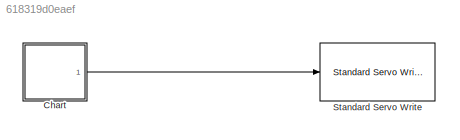
MODEL slx_618319d0eaef
KIND model
CONFIG AbsTol = auto
CONFIG EnableMultiTasking = on
CONFIG FixedStep = 0.1
CONFIG MaxStep = auto
CONFIG MinStep = auto
CONFIG RelTol = 1e-3
CONFIG SampleTimeConstraint = Unconstrained
CONFIG Solver = FixedStepAuto
CONFIG SolverName = FixedStepAuto
CONFIG StartTime = 0.0
CONFIG StopTime = inf
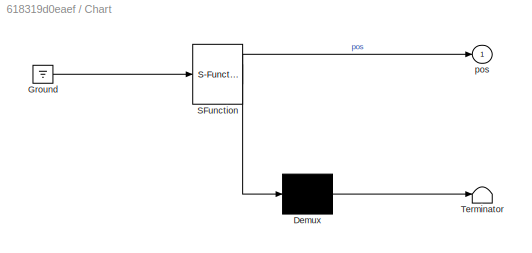
BLOCK [SubSystem] Chart
  BlockKeywords = __PRM__SERIALIZED__DATA__:Stateflow Chart,Stateflow Diagram
  ErrorFcn = Stateflow.Translate.translate
  PermitHierarchicalResolution = ExplicitOnly
  Ports = [0, 1]
  RequestExecContextInheritance = off
  SFBlockType = Chart
  TreatAsAtomicUnit = on
BLOCK [Demux] Chart/ Demux 
  Outputs = 1
  Ports = [1, 1]
BLOCK [Ground] Chart/ Ground 
BLOCK [S-Function] Chart/ SFunction 
  EnableBusSupport = on
  FunctionName = sf_sfun
  PortCounts = [1 2]
  Ports = [1, 2]
  SFcnIsStateOwnerBlock = off
  SFunctionDeploymentMode = off
  Tag = Stateflow S-Function servomotorFOLDING 3
BLOCK [Terminator] Chart/ Terminator 
BLOCK [Outport] Chart/pos
  IconDisplay = Port number
BLOCK [Reference] Standard Servo Write  REF=arduinolib/Standard Servo Write
  Ports = [1]
  SourceBlock = arduinolib/Standard Servo Write
  SourceProductBaseCode = ARDUINO
  SourceProductName = Simulink Support Package for Arduino Hardware
  SourceType = Arduino Standard Servo Write
LINE Chart:1 -> Standard Servo Write:1
CHART Chart states=3 transitions=3
  STATE_LABEL 'OFF\npos=180;'
  STATE_LABEL 'ON\npos=0;'
  STATE_LABEL 'ON1\npos=0;'
